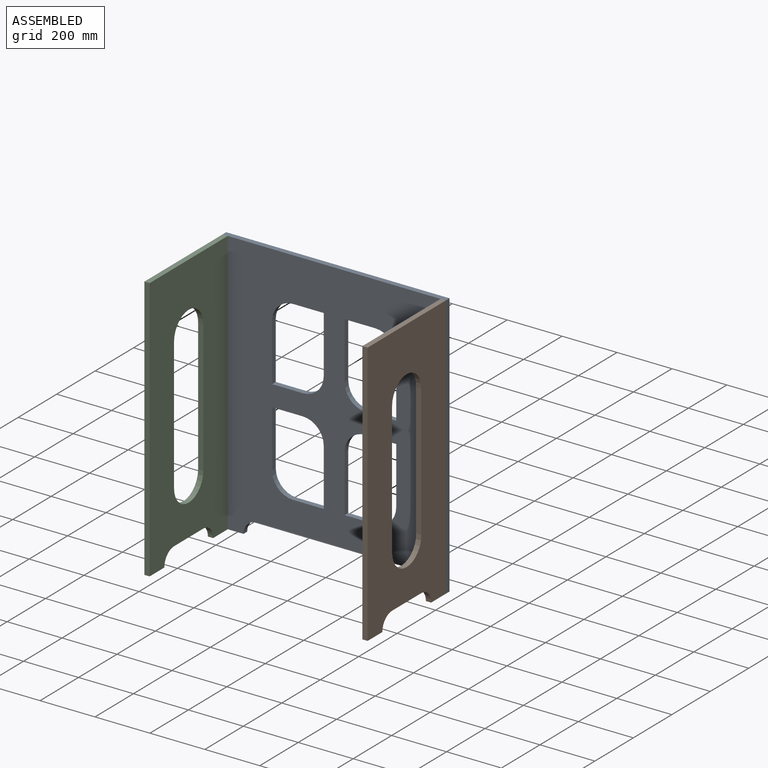
[diagram: assembled view]
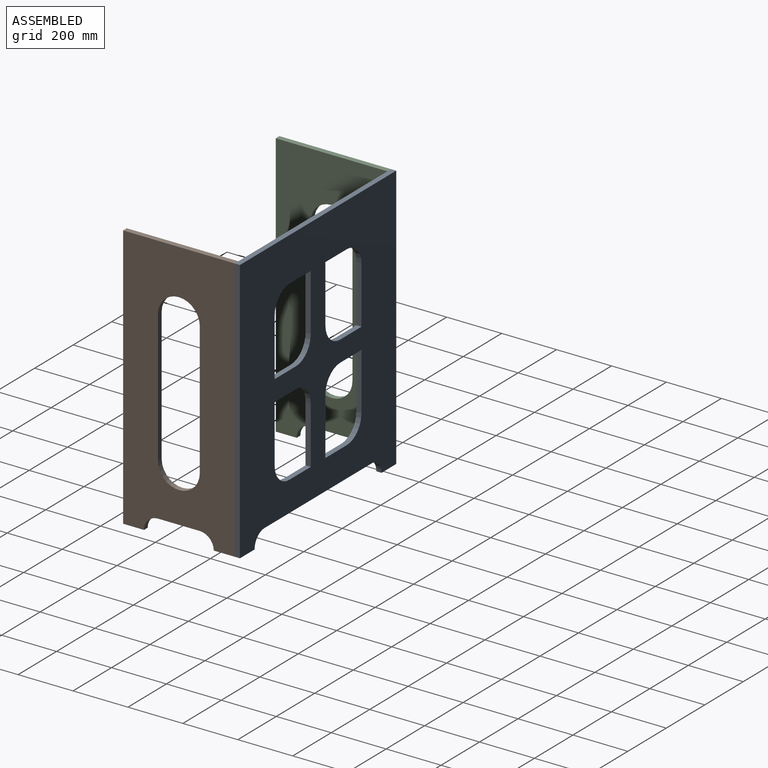
[diagram: assembled view, second angle]
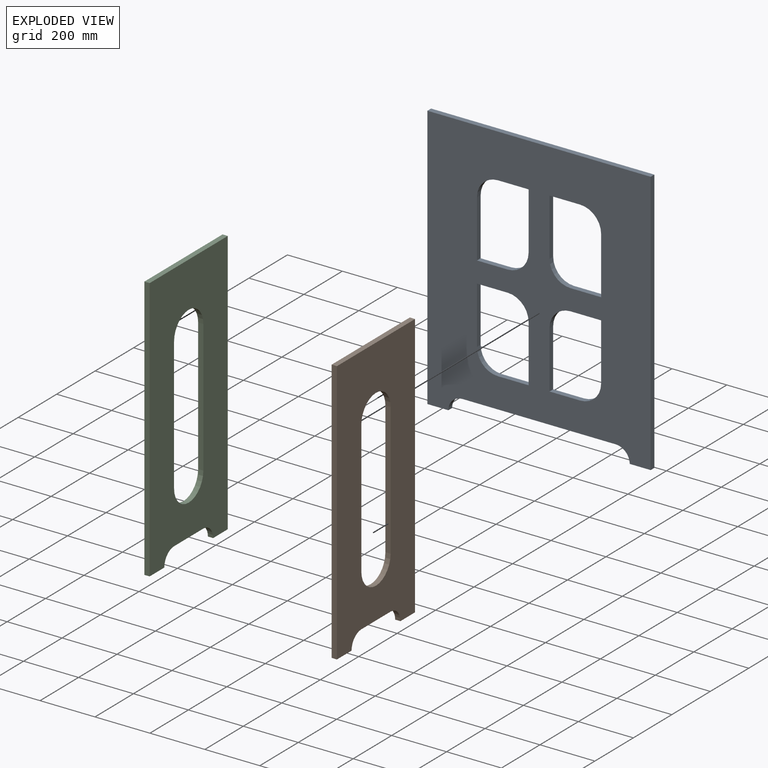
[diagram: exploded view]
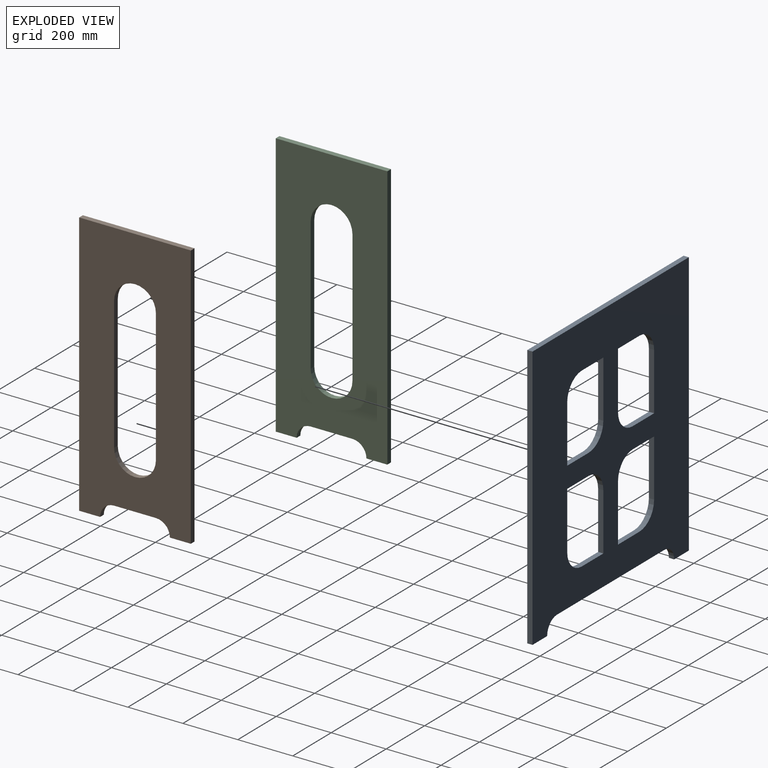
[diagram: exploded view, second angle]
ASSEMBLY  parts=3 mates=2
PART A: 34 faces, bbox 812.8x19.1x965.2 mm
  f0: plane 965.2x812.8mm, normal (0,-1,0), area 548415.7mm2, adj f2,f3,f4,f5,f6,f7,f8,f9
  f1: plane 965.2x812.8mm, normal (0,1,0), area 548415.7mm2, adj f2,f3,f4,f5,f6,f7,f8,f9
  f2: plane 76.2x19.05mm, normal (0,0,-1), area 1451.6mm2, adj f0,f1,f3,f32
  f3: plane 965.2x19.05mm, normal (1,0,0), area 18387.1mm2, adj f0,f1,f2,f4
  f4: plane 812.8x19.05mm, normal (0,0,1), area 15483.8mm2, adj f0,f1,f3,f5
  f5: plane 965.2x19.05mm, normal (-1,0,0), area 18387.1mm2, adj f0,f1,f4,f6
  f6: plane 76.2x19.05mm, normal (0,0,-1), area 1451.6mm2, adj f0,f1,f5,f33
  f7: plane 208.09x19.05mm, normal (-1,0,0), area 3964.2mm2, adj f0,f1,f8,f29
  f8: plane 111.66x19.05mm, normal (0,0,-1), area 2127.1mm2, adj f0,f1,f7,f30
  f9: plane 208.09x19.05mm, normal (1,0,0), area 3964.2mm2, adj f0,f1,f10,f30
  f10: plane 111.66x19.05mm, normal (0,0,1), area 2127.1mm2, adj f0,f1,f9,f29
  f11: plane 208.09x19.05mm, normal (-1,0,0), area 3964.2mm2, adj f0,f1,f14,f27
  f12: plane 111.66x19.05mm, normal (0,0,-1), area 2127.1mm2, adj f0,f1,f13,f27
  f13: plane 208.09x19.05mm, normal (1,0,0), area 3964.2mm2, adj f0,f1,f12,f28
  f14: plane 111.66x19.05mm, normal (0,0,1), area 2127.1mm2, adj f0,f1,f11,f28
  f15: plane 208.09x19.05mm, normal (-1,0,0), area 3964.2mm2, adj f0,f1,f16,f25
  f16: plane 111.66x19.05mm, normal (0,0,-1), area 2127.1mm2, adj f0,f1,f15,f26
  f17: plane 208.09x19.05mm, normal (1,0,0), area 3964.2mm2, adj f0,f1,f18,f26
  f18: plane 111.66x19.05mm, normal (0,0,1), area 2127.1mm2, adj f0,f1,f17,f25
  f19: plane 111.66x19.05mm, normal (0,0,1), area 2127.1mm2, adj f0,f1,f20,f23
  f20: plane 208.09x19.05mm, normal (-1,0,0), area 3964.2mm2, adj f0,f1,f19,f24
  f21: plane 111.66x19.05mm, normal (0,0,-1), area 2127.1mm2, adj f0,f1,f22,f24
  f22: plane 208.09x19.05mm, normal (1,0,0), area 3964.2mm2, adj f0,f1,f21,f23
  f23: cylinder r=76.2mm len=76.2mm, axis (0,-1,0), area 2280.2mm2, adj f0,f1,f19,f22
  f24: cylinder r=76.2mm len=76.2mm, axis (0,-1,0), area 2280.2mm2, adj f0,f1,f20,f21
  f25: cylinder r=76.2mm len=76.2mm, axis (0,1,0), area 2280.2mm2, adj f0,f1,f15,f18
  f26: cylinder r=76.2mm len=76.2mm, axis (0,1,0), area 2280.2mm2, adj f0,f1,f16,f17
  f27: cylinder r=76.2mm len=76.2mm, axis (0,-1,0), area 2280.2mm2, adj f0,f1,f11,f12
  f28: cylinder r=76.2mm len=76.2mm, axis (0,-1,0), area 2280.2mm2, adj f0,f1,f13,f14
  f29: cylinder r=76.2mm len=76.2mm, axis (0,1,0), area 2280.2mm2, adj f0,f1,f7,f10
  f30: cylinder r=76.2mm len=76.2mm, axis (0,1,0), area 2280.2mm2, adj f0,f1,f8,f9
  f31: plane 558.8x19.05mm, normal (0,0,-1), area 10645.1mm2, adj f0,f1,f32,f33
  f32: cylinder r=50.8mm len=50.8mm, axis (0,-1,0), area 1520.1mm2, adj f0,f1,f2,f31
  f33: cylinder r=50.8mm len=50.8mm, axis (0,1,0), area 1520.1mm2, adj f0,f1,f6,f31
PART B: 14 faces, bbox 406.4x19.1x965.2 mm
  f0: plane 76.2x19.05mm, normal (0,0,-1), area 1451.6mm2, adj f1,f2,f3,f10
  f1: plane 965.2x406.4mm, normal (0,-1,0), area 288672mm2, adj f0,f3,f4,f5,f6,f7,f8,f9
  f2: plane 965.2x406.4mm, normal (0,1,0), area 288672mm2, adj f0,f3,f4,f5,f6,f7,f8,f9
  f3: plane 965.2x19.05mm, normal (1,0,0), area 18387.1mm2, adj f0,f1,f2,f4
  f4: plane 406.4x19.05mm, normal (0,0,1), area 7741.9mm2, adj f1,f2,f3,f5
  f5: plane 965.2x19.05mm, normal (-1,0,0), area 18387.1mm2, adj f1,f2,f4,f6
  f6: plane 76.2x19.05mm, normal (0,0,-1), area 1451.6mm2, adj f1,f2,f5,f11
  f7: plane 152.4x19.05mm, normal (0,0,-1), area 2903.2mm2, adj f1,f2,f10,f11
  f8: plane 482.6x19.05mm, normal (-1,0,0), area 9193.5mm2, adj f1,f2,f12,f13
  f9: plane 482.6x19.05mm, normal (1,0,0), area 9193.5mm2, adj f1,f2,f12,f13
  f10: cylinder r=50.8mm len=50.8mm, axis (0,-1,0), area 1520.1mm2, adj f0,f1,f2,f7
  f11: cylinder r=50.8mm len=50.8mm, axis (0,1,0), area 1520.1mm2, adj f1,f2,f6,f7
  f12: cylinder r=76.2mm len=152.4mm, axis (0,-1,0), area 4560.4mm2, adj f1,f2,f8,f9
  f13: cylinder r=76.2mm len=152.4mm, axis (0,-1,0), area 4560.4mm2, adj f1,f2,f8,f9
PART C: same geometry as B
PLACE A t=(176.9,95.9,-23.63)mm
PLACE B rot(axis=(0,0,1),90deg) t=(564.25,-126.35,-23.63)mm
PLACE C rot(axis=(0,0,-1),90deg) t=(-210.45,-126.35,-23.63)mm
MATE parallel C.f5 <-> A.f0  axis (0,1,0) through (-229.5,76.85,458.97)mm
MATE parallel B.f3 <-> A.f0  axis (0,1,0) through (583.3,76.85,458.97)mm
